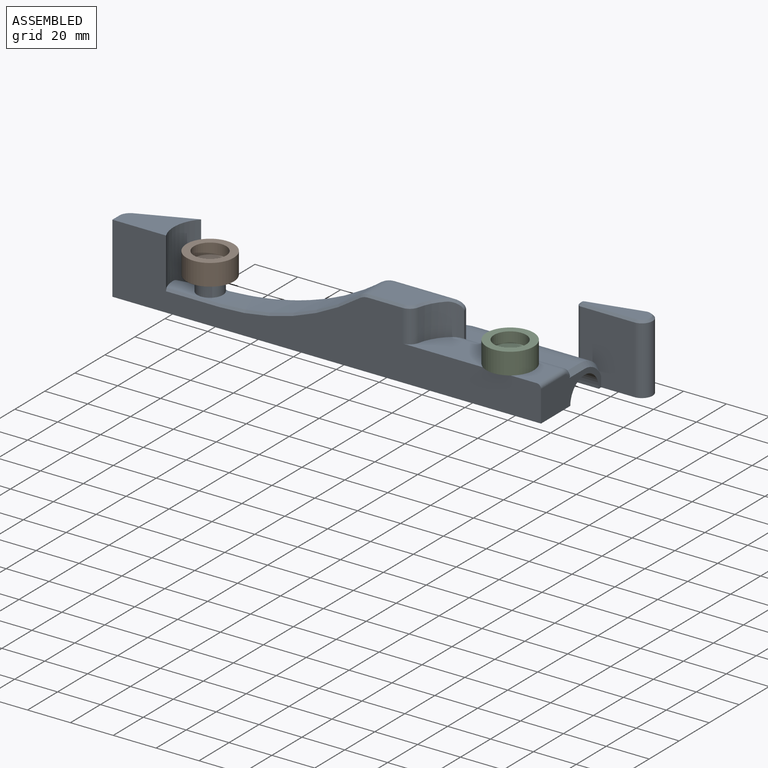
[diagram: assembled view]
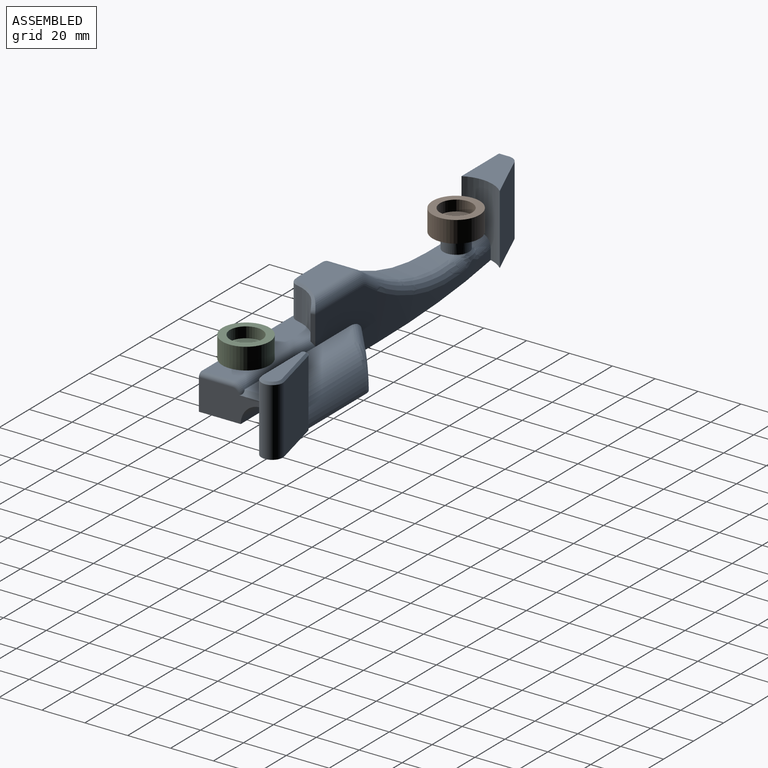
[diagram: assembled view, second angle]
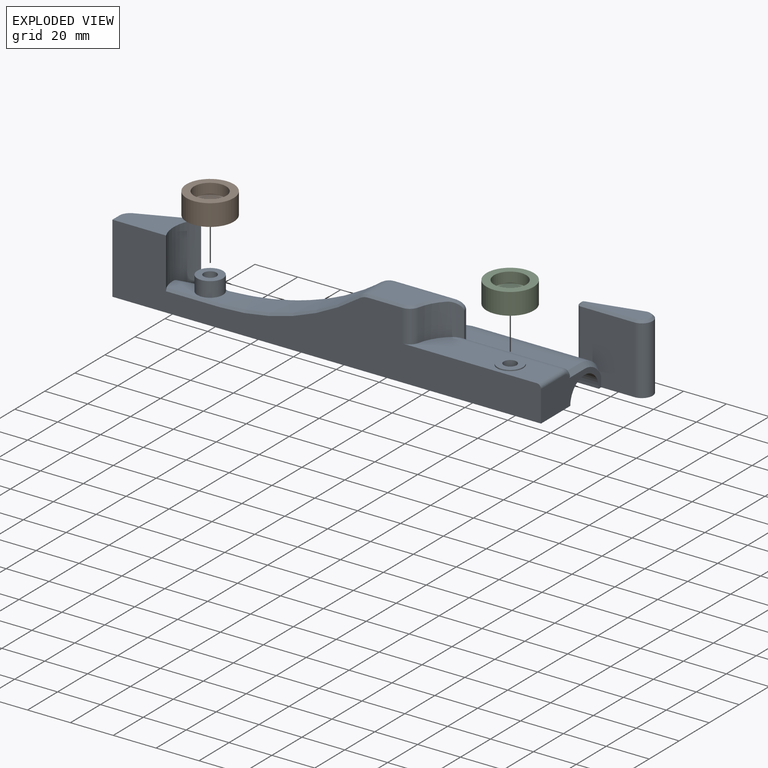
[diagram: exploded view]
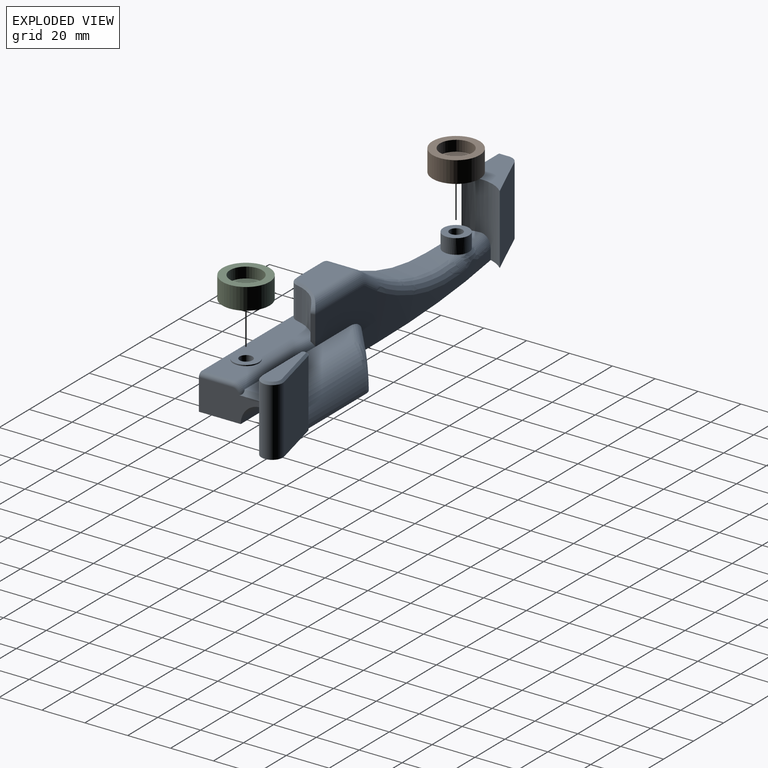
[diagram: exploded view, second angle]
ASSEMBLY  parts=3 mates=2
PART A: 59 faces, bbox 223.1x52.6x35.1 mm
  f0: plane 43.6x30.06mm, normal (0,1,0), area 678.2mm2, adj f1,f4,f9,f21,f31,f34,f35,f36
  f1: cylinder r=500mm len=86.34mm, axis (0,0,-1), area 764.4mm2, adj f0,f9,f22,f37,f38,f39,f40
  f2: plane 26.99x10.49mm, normal (0,0,1), area 147.4mm2, adj f10,f12,f22,f38,f40,f54
  f3: cylinder r=14mm len=59.17mm, axis (1,0,0), area 1103.5mm2, adj f4,f9,f26,f27,f30,f43
  f4: plane 70.12x9mm, normal (0,0,1), area 581.8mm2, adj f0,f3,f31,f42,f44
  f5: plane 40.07x14.5mm, normal (1,0,0), area 361.2mm2, adj f6,f9,f19,f26,f43,f44,f45,f46
  f6: plane 200x32.5mm, normal (0,-1,0), area 3763mm2, adj f5,f8,f9,f11,f22,f24,f33,f45
  f7: plane 25.91x14mm, normal (0,0,1), area 300.3mm2, adj f18,f34,f49,f50,f51
  f8: plane 32.5x4.68mm, normal (-1,0,0), area 152.2mm2, adj f6,f9,f24,f41
  f9: plane 220.53x50.09mm, normal (0,0,-1), area 4334.5mm2, adj f0,f1,f3,f5,f6,f8,f16,f17
  f10: cylinder r=110mm len=64.61mm, axis (0,-1,0), area 860.7mm2, adj f2,f18,f36,f37,f53
  f11: plane 62.72x15.67mm, normal (0,0,1), area 766.2mm2, adj f6,f14,f32,f33,f42,f45
  f12: cylinder r=6mm len=12mm, axis (0,0,-1), area 263.9mm2, adj f2,f13,f39
  f13: plane 12x12mm, normal (0,0,1), area 84.8mm2, adj f12,f17
  f14: cylinder r=6mm len=12mm, axis (0,0,-1), area 18.8mm2, adj f11,f15
  f15: plane 12x12mm, normal (0,0,1), area 84.8mm2, adj f14,f16
  f16: cylinder r=3mm len=17mm, axis (0,0,1), area 320.4mm2, adj f9,f15
  f17: cylinder r=3mm len=17mm, axis (0,0,1), area 320.4mm2, adj f9,f13
  f18: cylinder r=8mm len=14mm, axis (0,-1,0), area 70.3mm2, adj f7,f10,f35,f52
  f19: cylinder r=9.5mm len=50mm, axis (1,0,0), area 1492.3mm2, adj f5,f9,f20
  f20: plane 19x9.5mm, normal (1,0,0), area 141.8mm2, adj f9,f19
  f21: plane 26.62x21.86mm, normal (-0.63,0.77,0), area 282.6mm2, adj f0,f9,f30,f31
  f22: cylinder r=17mm len=32.5mm, axis (0,0,-1), area 564.3mm2, adj f1,f2,f6,f9,f23,f24,f40,f54
  f23: plane 32.5x24.58mm, normal (-0.39,0.92,0), area 867.2mm2, adj f9,f22,f24,f41
  f24: plane 27.64x19.67mm, normal (0,0,1), area 311.3mm2, adj f6,f8,f22,f23,f41
  f25: cylinder r=5mm len=31.5mm, axis (0,0,-1), area 532.4mm2, adj f9,f26,f28,f56
  f26: plane 31.92x25.42mm, normal (0,-1,0), area 709.9mm2, adj f3,f5,f9,f25,f27,f43,f58
  f27: cylinder r=2mm len=31.5mm, axis (0,0,-1), area 156.3mm2, adj f3,f9,f26,f28,f57
  f28: plane 31.5x24.29mm, normal (-0.24,0.97,0), area 787.5mm2, adj f9,f25,f27,f55
  f29: plane 30x8mm, normal (0,0,1), area 153.5mm2, adj f55,f56,f57,f58
  f30: bspline ~14.13x14mm, area 116.5mm2, adj f3,f9,f21,f31
  f31: cylinder r=5mm len=18.83mm, axis (-0.77,-0.63,0), area 135.3mm2, adj f0,f4,f21,f30
  f32: cylinder r=20.34mm len=15.63mm, axis (0,0,-1), area 269.3mm2, adj f11,f33,f42,f47,f48,f49
  f33: cylinder r=5mm len=15mm, axis (0,0,-1), area 101.9mm2, adj f6,f11,f32,f50
  f34: cylinder r=5mm len=31.73mm, axis (1,0,0), area 226.3mm2, adj f0,f7,f35,f48
  f35: torus R=3mm, axis (0,-1,0), area 30.5mm2, adj f0,f18,f34,f36
  f36: torus R=115mm, axis (0,-1,0), area 69.3mm2, adj f0,f10,f35,f37
  f37: bspline ~78.95x24.86mm, area 483mm2, adj f0,f1,f10,f36,f38
  f38: torus R=495mm, axis (0,0,-1), area 37.8mm2, adj f1,f2,f37,f39
  f39: bspline ~11.86x6.53mm, area 57.9mm2, adj f1,f12,f38,f40
  f40: torus R=495mm, axis (0,0,-1), area 83.2mm2, adj f1,f2,f22,f39
  f41: cylinder r=5mm len=32.5mm, axis (0,0,-1), area 190.3mm2, adj f8,f9,f23,f24
  f42: cylinder r=5mm len=50.49mm, axis (-1,0,0), area 249.3mm2, adj f4,f11,f32,f46,f47
  f43: cone r=12mm half-angle=45deg, axis (-1,0,0), area 38.3mm2, adj f3,f5,f26,f44
  f44: plane 10.37x2mm, normal (0.71,0,0.71), area 25.6mm2, adj f4,f5,f43,f46
  f45: cylinder r=2mm len=15.67mm, axis (0,1,0), area 49.2mm2, adj f5,f6,f11,f46
  f46: torus R=3mm, axis (-1,0,0), area 17.2mm2, adj f5,f42,f44,f45
  f47: plane 13.56x1.96mm, normal (0.98,0.22,0), area 24.2mm2, adj f0,f32,f42,f48
  f48: bspline ~6.24x5.72mm, area 16mm2, adj f32,f34,f47,f49
  f49: cone r=21.34mm half-angle=45deg, axis (0,0,1), area 17.4mm2, adj f7,f32,f48,f50
  f50: cone r=4mm half-angle=45deg, axis (0,0,-1), area 8.6mm2, adj f7,f33,f49,f51
  f51: plane 15.97x1mm, normal (0,-0.71,0.71), area 22.6mm2, adj f6,f7,f50,f52
  f52: cone r=7mm half-angle=45deg, axis (0,1,0), area 6.7mm2, adj f6,f18,f51,f53
  f53: cone r=110mm half-angle=45deg, axis (0,-1,0), area 98.1mm2, adj f6,f10,f52,f54
  f54: plane 25.5x1.01mm, normal (0,-0.71,0.71), area 35.7mm2, adj f2,f6,f22,f53
  f55: plane 24.53x6.89mm, normal (-0.17,0.69,0.71), area 35.4mm2, adj f28,f29,f56,f57
  f56: cone r=5mm half-angle=45deg, axis (0,0,-1), area 21.5mm2, adj f25,f29,f55,f58
  f57: cone r=2mm half-angle=45deg, axis (0,0,-1), area 6.2mm2, adj f27,f29,f55,f58
  f58: plane 25x1mm, normal (0,-0.71,0.71), area 35.4mm2, adj f26,f29,f56,f57
PART B: 6 faces, bbox 22x22x10 mm
  f0: cylinder r=11mm len=22mm, axis (0,0,-1), area 691.2mm2, adj f1,f2
  f1: plane 22x22mm, normal (0,0,-1), area 351.9mm2, adj f0,f5
  f2: plane 22x22mm, normal (0,0,1), area 203.4mm2, adj f0,f3
  f3: cylinder r=7.5mm len=15mm, axis (0,0,1), area 235.6mm2, adj f2,f4
  f4: plane 15x15mm, normal (0,0,1), area 148.4mm2, adj f3,f5
  f5: cylinder r=3mm len=6mm, axis (0,0,1), area 94.2mm2, adj f1,f4
PART C: same geometry as B
PLACE A t=(-116.43,45.7,-37.3)mm
PLACE B t=(-76.43,53.7,-36.55)mm
PLACE C t=(63.57,53.7,-36.55)mm
MATE parallel C.f0 <-> A.f14  axis (0,0,-1) through (63.57,53.7,-36.55)mm
MATE parallel B.f0 <-> A.f12  axis (0,0,-1) through (-76.43,53.7,-36.55)mm
